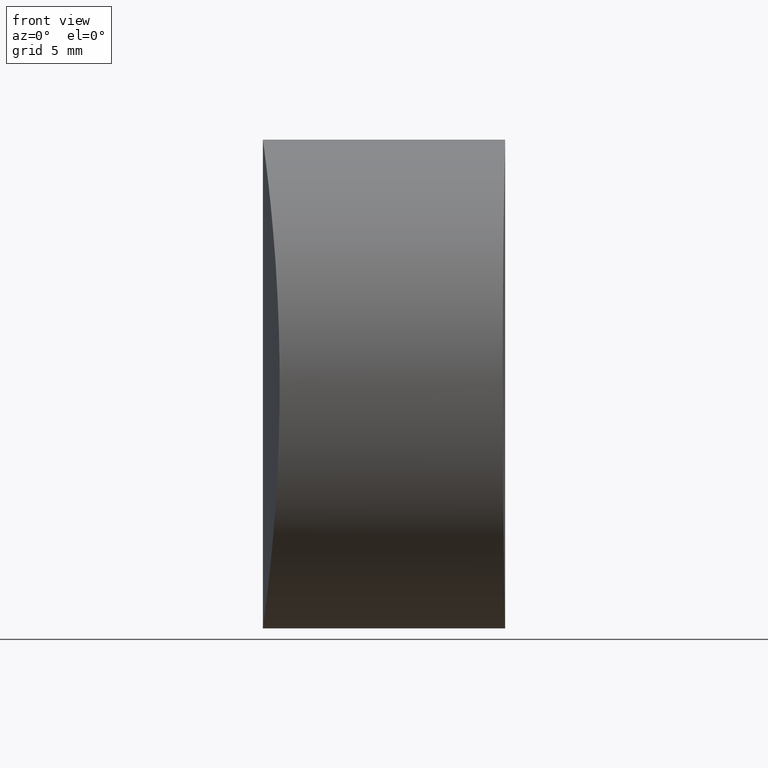
[diagram: clean part render]
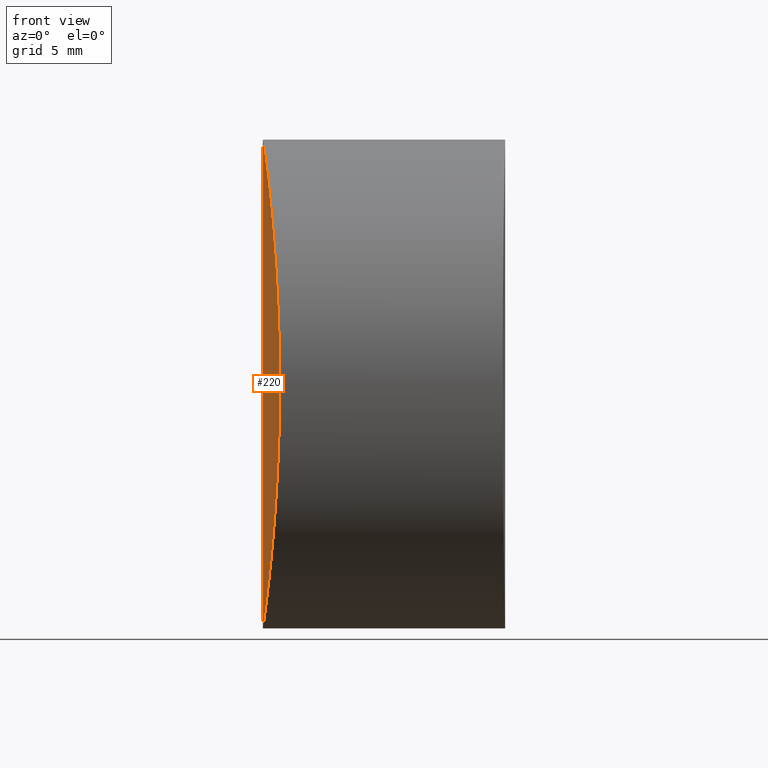
[diagram: same view with one face highlighted and labeled with its STEP entity id]
A machine part, front view. The second image highlights one B-rep face of the part: STEP entity #220.
In plain terms, the highlighted cylindrical surface (partial cylindrical patch) has radius 85.43 mm, axis along (-0, -0, -1).
Its self-contained STEP definition (entity closure, byte-faithful):
#10 = CARTESIAN_POINT ( 'NONE',  ( 0.000000000000000000, 0.000000000000000000, 23.39999999999999858 ) ) ;
#14 = CARTESIAN_POINT ( 'NONE',  ( -4.982711311605177194E-31, -5.239318916970031671E-46, -1.734723475976806306E-15 ) ) ;
#28 = CARTESIAN_POINT ( 'NONE',  ( 6.324512672832170006E-17, -0.7735007242164915198, -1.807003620809191543E-15 ) ) ;
#44 = CARTESIAN_POINT ( 'NONE',  ( 0.6046922169477022546, -10.15550277636757137, 17.55996626465684685 ) ) ;
#50 = FACE_OUTER_BOUND ( 'NONE', #163, .T. ) ;
#52 = CARTESIAN_POINT ( 'NONE',  ( 0.09899385815515494846, -4.126732457966788559, 0.7452340947286396622 ) ) ;
#54 = CARTESIAN_POINT ( 'NONE',  ( 0.01049551717967118700, -1.533902604541913295, 0.07594905271450159978 ) ) ;
#57 = CARTESIAN_POINT ( 'NONE',  ( 0.3488080069896614677, -7.717827117987394736, 2.898112867211508181 ) ) ;
#78 = CARTESIAN_POINT ( 'NONE',  ( 0.7051499728978932735, -10.95475100229012178, 15.82677094144197305 ) ) ;
#82 = CYLINDRICAL_SURFACE ( 'NONE', #193, 85.43000000000000682 ) ;
#84 = CARTESIAN_POINT ( 'NONE',  ( 0.7509120939584935650, -11.30263944536091358, 8.652569577926120914 ) ) ;
#86 = CARTESIAN_POINT ( 'NONE',  ( 0.7641371267976032611, -11.40097338447894693, 14.35577758986275221 ) ) ;
#93 = B_SPLINE_CURVE_WITH_KNOTS ( 'NONE', 3,
 ( #206, #28, #54, #338, #283, #146, #52, #257, #115, #263, #168, #57, #236, #310, #281, #176, #369, #290, #365, #231, #121, #84, #312, #170, #118, #233, #340, #86, #202, #314, #78, #303, #44, #304, #335, #332, #192, #194, #166, #111, #139, #278, #307, #254, #250, #249, #279, #165, #140, #255 ),
 .UNSPECIFIED., .F., .F.,
 ( 4, 2, 2, 2, 2, 2, 2, 2, 2, 2, 2, 2, 2, 2, 2, 2, 2, 2, 2, 2, 2, 2, 2, 2, 4 ),
 ( -0.01829849772484453546, -0.01601117036630202162, -0.01486750668703076643, -0.01372384300775950951, -0.01143651564921699913, -0.01029285196994574568, -0.009149188290674490492, -0.006861860932131988791, -0.005718197252860735338, -0.004574533573589481886, -0.003430869894318230168, -0.002287206215046980184, 1.211434955267209901E-07, 0.002287448502038033626, 0.003431112181309287079, 0.004574775860580544001, 0.006862103219123040498, 0.008005766898394290482, 0.009149430577665536996, 0.01143675793620802655, 0.01258042161547926960, 0.01372408529475051264, 0.01486774897402175916, 0.01601141265329300567, 0.01829874001183549176 ),
 .UNSPECIFIED. ) ;
#107 = VERTEX_POINT ( 'NONE', #216 ) ;
#111 = CARTESIAN_POINT ( 'NONE',  ( 0.2240617271662432297, -6.191570528692841968, 21.63489624173244508 ) ) ;
#115 = CARTESIAN_POINT ( 'NONE',  ( 0.1988347925168873209, -5.859980309517195174, 1.544504016557944226 ) ) ;
#118 = CARTESIAN_POINT ( 'NONE',  ( 0.8049758647438547410, -11.70000812424418868, 10.92663245149455342 ) ) ;
#121 = CARTESIAN_POINT ( 'NONE',  ( 0.7214022135711677386, -11.07930720252659995, 7.920391221137811577 ) ) ;
#139 = CARTESIAN_POINT ( 'NONE',  ( 0.2005532909834797373, -5.860068956771623760, 21.83389294845257922 ) ) ;
#140 = CARTESIAN_POINT ( 'NONE',  ( 6.431474111115942763E-15, -0.7734806364466176865, 23.39999999999999503 ) ) ;
#146 = CARTESIAN_POINT ( 'NONE',  ( 0.08206096595699850782, -3.761583598946705909, 0.6145141402618543580 ) ) ;
#150 = EDGE_CURVE ( 'NONE', #107, #313, #159, .T. ) ;
#156 = DIRECTION ( 'NONE',  ( -0.000000000000000000, -0.000000000000000000, -1.000000000000000000 ) ) ;
#159 = LINE ( 'NONE', #10, #302 ) ;
#163 = EDGE_LOOP ( 'NONE', ( #329, #251 ) ) ;
#165 = CARTESIAN_POINT ( 'NONE',  ( 0.01050068492176082190, -1.538213765297997471, 23.32404452752199830 ) ) ;
#166 = CARTESIAN_POINT ( 'NONE',  ( 0.2972844449586438120, -7.149537921247302918, 20.99327408913114823 ) ) ;
#168 = CARTESIAN_POINT ( 'NONE',  ( 0.2969290566159361044, -7.122802687381152964, 2.410018600765388985 ) ) ;
#170 = CARTESIAN_POINT ( 'NONE',  ( 0.7943724764860889964, -11.62405835420322830, 10.16188730965645703 ) ) ;
#176 = CARTESIAN_POINT ( 'NONE',  ( 0.5793779865615192870, -9.934947642419222902, 5.508512017653744763 ) ) ;
#192 = CARTESIAN_POINT ( 'NONE',  ( 0.4280043386027260754, -8.545104744097541172, 19.70101677041236599 ) ) ;
#193 = AXIS2_PLACEMENT_3D ( 'NONE', #198, #343, #287 ) ;
#194 = CARTESIAN_POINT ( 'NONE',  ( 0.3493858909968753923, -7.737359295398966275, 20.50929105694526910 ) ) ;
#198 = CARTESIAN_POINT ( 'NONE',  ( 85.43000000000000682, 0.000000000000000000, 23.39999999999999858 ) ) ;
#202 = CARTESIAN_POINT ( 'NONE',  ( 0.7516674377665271134, -11.30829448984635910, 14.72654541169406883 ) ) ;
#206 = CARTESIAN_POINT ( 'NONE',  ( -4.982711311605177194E-31, -5.239318916970031671E-46, -1.734723475976806306E-15 ) ) ;
#216 = CARTESIAN_POINT ( 'NONE',  ( 6.477406527599691417E-15, -9.629649721936179265E-32, 23.39999999999999858 ) ) ;
#220 = ADVANCED_FACE ( 'NONE', ( #50 ), #82, .T. ) ;
#231 = CARTESIAN_POINT ( 'NONE',  ( 0.7045743629348640846, -10.95028959137527380, 7.561631314208023369 ) ) ;
#233 = CARTESIAN_POINT ( 'NONE',  ( 0.8049736180985221923, -11.69999187446487277, 12.47361334652224230 ) ) ;
#236 = CARTESIAN_POINT ( 'NONE',  ( 0.3750706504109370676, -8.001073129360680269, 3.154947741401982864 ) ) ;
#249 = CARTESIAN_POINT ( 'NONE',  ( 0.05358774859665910162, -3.047517999023455104, 23.00261582745045530 ) ) ;
#250 = CARTESIAN_POINT ( 'NONE',  ( 0.08286738555103337345, -3.779694348437172557, 22.77927800579522355 ) ) ;
#251 = ORIENTED_EDGE ( 'NONE', *, *, #150, .T. ) ;
#254 = CARTESIAN_POINT ( 'NONE',  ( 0.09957146157945057086, -4.138453883356742580, 22.65025742589863000 ) ) ;
#255 = CARTESIAN_POINT ( 'NONE',  ( 6.477406527599691417E-15, -9.629649721936179265E-32, 23.39999999999999858 ) ) ;
#257 = CARTESIAN_POINT ( 'NONE',  ( 0.1547640502430634724, -5.188598418656058975, 1.185452281450739109 ) ) ;
#263 = CARTESIAN_POINT ( 'NONE',  ( 0.2715021646117392606, -6.812976176640775705, 2.180587066896687798 ) ) ;
#277 = EDGE_CURVE ( 'NONE', #313, #107, #93, .T. ) ;
#278 = CARTESIAN_POINT ( 'NONE',  ( 0.1568789116780656412, -5.185924638826756805, 22.19487399206035860 ) ) ;
#279 = CARTESIAN_POINT ( 'NONE',  ( 0.04096924344706875942, -2.672329070877792478, 23.09724903335593638 ) ) ;
#281 = CARTESIAN_POINT ( 'NONE',  ( 0.5058916430108222340, -9.293335389968666149, 4.550541999413332483 ) ) ;
#283 = CARTESIAN_POINT ( 'NONE',  ( 0.05283304163181525015, -3.026478265824779079, 0.3916872511939496482 ) ) ;
#287 = DIRECTION ( 'NONE',  ( -1.000000000000000000, 0.000000000000000000, 0.000000000000000000 ) ) ;
#290 = CARTESIAN_POINT ( 'NONE',  ( 0.6468961291046688711, -10.49491570026977705, 6.514159846023001244 ) ) ;
#302 = VECTOR ( 'NONE', #156, 1000.000000000000000 ) ;
#303 = CARTESIAN_POINT ( 'NONE',  ( 0.6490068328121011421, -10.51454345816874003, 16.88860362405012339 ) ) ;
#304 = CARTESIAN_POINT ( 'NONE',  ( 0.5317622976944910151, -9.519436922708317539, 18.51294216844009100 ) ) ;
#307 = CARTESIAN_POINT ( 'NONE',  ( 0.1365767840775509723, -4.841569084987638050, 22.35805549964017658 ) ) ;
#310 = CARTESIAN_POINT ( 'NONE',  ( 0.4536899378769024826, -8.809355241206857201, 3.962712521276258393 ) ) ;
#312 = CARTESIAN_POINT ( 'NONE',  ( 0.7636374067821997125, -11.39727006629200723, 9.027760142963625611 ) ) ;
#313 = VERTEX_POINT ( 'NONE', #14 ) ;
#314 = CARTESIAN_POINT ( 'NONE',  ( 0.7222086597817900522, -11.08546868884451264, 15.46163333497350756 ) ) ;
#329 = ORIENTED_EDGE ( 'NONE', *, *, #277, .T. ) ;
#332 = CARTESIAN_POINT ( 'NONE',  ( 0.4542909831996566061, -8.801932024367470575, 19.41777538431841776 ) ) ;
#335 = CARTESIAN_POINT ( 'NONE',  ( 0.5062645087274185718, -9.290009713551356185, 18.82276517698699081 ) ) ;
#338 = CARTESIAN_POINT ( 'NONE',  ( 0.04046860187852996393, -2.655702060082180349, 0.2990087722863913333 ) ) ;
#340 = CARTESIAN_POINT ( 'NONE',  ( 0.7943740081462123959, -11.62403689245180161, 13.23400169640623147 ) ) ;
#343 = DIRECTION ( 'NONE',  ( -0.000000000000000000, -0.000000000000000000, -1.000000000000000000 ) ) ;
#365 = CARTESIAN_POINT ( 'NONE',  ( 0.6673217419372412529, -10.65809392138062961, 6.858515570865217903 ) ) ;
#369 = CARTESIAN_POINT ( 'NONE',  ( 0.6029925411409801095, -10.13394114416854741, 5.840014458644363415 ) ) ;